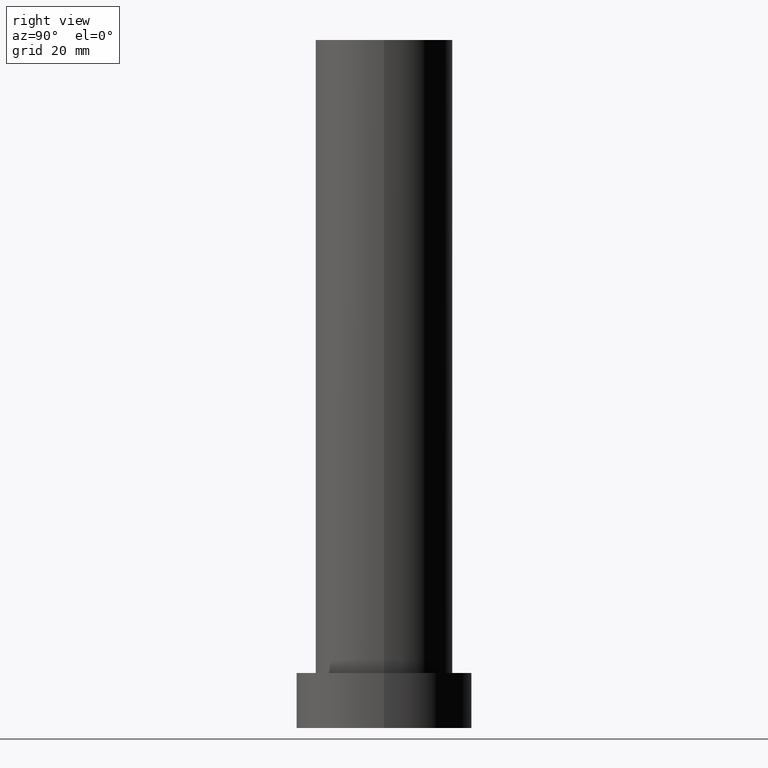
[diagram: clean part render]
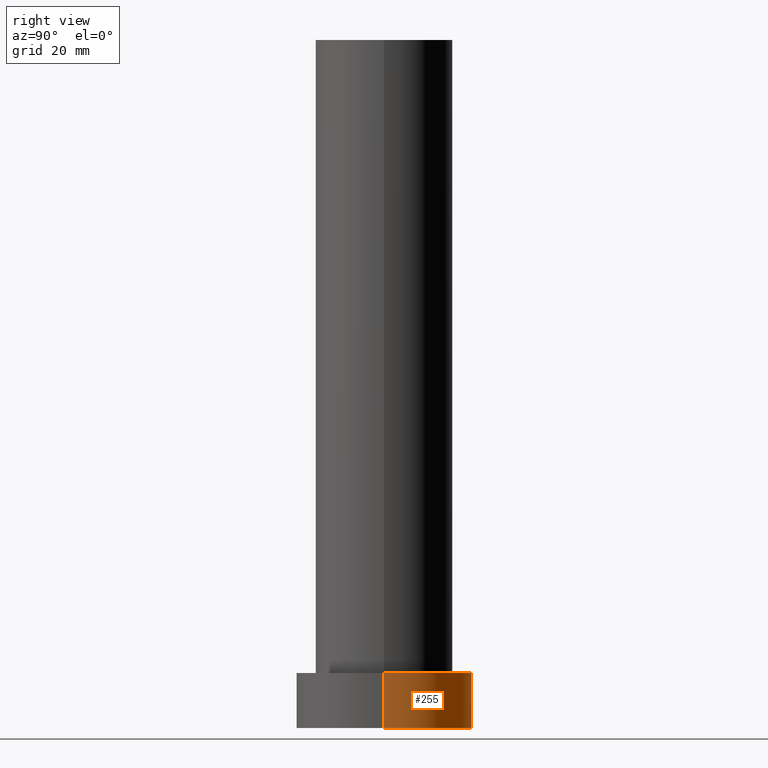
[diagram: same view with one face highlighted and labeled with its STEP entity id]
A machine part, right view. The second image highlights one B-rep face of the part: STEP entity #255.
In plain terms, the highlighted cylindrical surface (partial cylindrical patch) has radius 16 mm, axis along (-0, -0, -1).
Its self-contained STEP definition (entity closure, byte-faithful):
#2 = DIRECTION ( 'NONE',  ( -0.000000000000000000, -0.000000000000000000, -1.000000000000000000 ) ) ;
#3 = VECTOR ( 'NONE', #163, 1000.000000000000000 ) ;
#12 = DIRECTION ( 'NONE',  ( -0.000000000000000000, -0.000000000000000000, -1.000000000000000000 ) ) ;
#15 = ORIENTED_EDGE ( 'NONE', *, *, #67, .T. ) ;
#18 = CARTESIAN_POINT ( 'NONE',  ( 16.00000000000000000, 1.959434878635765131E-15, 10.00000000000000000 ) ) ;
#26 = CARTESIAN_POINT ( 'NONE',  ( 0.000000000000000000, 0.000000000000000000, 10.00000000000000000 ) ) ;
#27 = DIRECTION ( 'NONE',  ( 1.000000000000000000, 0.000000000000000000, 0.000000000000000000 ) ) ;
#43 = EDGE_CURVE ( 'NONE', #165, #206, #109, .T. ) ;
#51 = CIRCLE ( 'NONE', #160, 16.00000000000000000 ) ;
#62 = CARTESIAN_POINT ( 'NONE',  ( 16.00000000000000000, 1.959434878635765131E-15, 0.000000000000000000 ) ) ;
#66 = ORIENTED_EDGE ( 'NONE', *, *, #155, .T. ) ;
#67 = EDGE_CURVE ( 'NONE', #245, #189, #51, .T. ) ;
#68 = DIRECTION ( 'NONE',  ( 0.000000000000000000, 0.000000000000000000, 1.000000000000000000 ) ) ;
#71 = CARTESIAN_POINT ( 'NONE',  ( -16.00000000000000000, 0.000000000000000000, 10.00000000000000000 ) ) ;
#100 = DIRECTION ( 'NONE',  ( -1.000000000000000000, 0.000000000000000000, 0.000000000000000000 ) ) ;
#108 = EDGE_LOOP ( 'NONE', ( #202, #66, #15, #187 ) ) ;
#109 = CIRCLE ( 'NONE', #140, 16.00000000000000000 ) ;
#110 = DIRECTION ( 'NONE',  ( 0.000000000000000000, 0.000000000000000000, 1.000000000000000000 ) ) ;
#134 = LINE ( 'NONE', #18, #242 ) ;
#140 = AXIS2_PLACEMENT_3D ( 'NONE', #200, #110, #27 ) ;
#153 = CARTESIAN_POINT ( 'NONE',  ( -16.00000000000000000, 0.000000000000000000, 0.000000000000000000 ) ) ;
#155 = EDGE_CURVE ( 'NONE', #165, #245, #134, .T. ) ;
#156 = LINE ( 'NONE', #159, #3 ) ;
#159 = CARTESIAN_POINT ( 'NONE',  ( -16.00000000000000000, 0.000000000000000000, 10.00000000000000000 ) ) ;
#160 = AXIS2_PLACEMENT_3D ( 'NONE', #241, #68, #175 ) ;
#163 = DIRECTION ( 'NONE',  ( -0.000000000000000000, -0.000000000000000000, -1.000000000000000000 ) ) ;
#165 = VERTEX_POINT ( 'NONE', #167 ) ;
#167 = CARTESIAN_POINT ( 'NONE',  ( 16.00000000000000000, 1.959434878635765131E-15, 10.00000000000000000 ) ) ;
#175 = DIRECTION ( 'NONE',  ( 1.000000000000000000, 0.000000000000000000, 0.000000000000000000 ) ) ;
#184 = AXIS2_PLACEMENT_3D ( 'NONE', #26, #2, #100 ) ;
#187 = ORIENTED_EDGE ( 'NONE', *, *, #221, .F. ) ;
#189 = VERTEX_POINT ( 'NONE', #153 ) ;
#198 = CYLINDRICAL_SURFACE ( 'NONE', #184, 16.00000000000000000 ) ;
#200 = CARTESIAN_POINT ( 'NONE',  ( 0.000000000000000000, 0.000000000000000000, 10.00000000000000000 ) ) ;
#202 = ORIENTED_EDGE ( 'NONE', *, *, #43, .F. ) ;
#206 = VERTEX_POINT ( 'NONE', #71 ) ;
#221 = EDGE_CURVE ( 'NONE', #206, #189, #156, .T. ) ;
#237 = FACE_OUTER_BOUND ( 'NONE', #108, .T. ) ;
#241 = CARTESIAN_POINT ( 'NONE',  ( 0.000000000000000000, 0.000000000000000000, 0.000000000000000000 ) ) ;
#242 = VECTOR ( 'NONE', #12, 1000.000000000000000 ) ;
#245 = VERTEX_POINT ( 'NONE', #62 ) ;
#255 = ADVANCED_FACE ( 'NONE', ( #237 ), #198, .T. ) ;